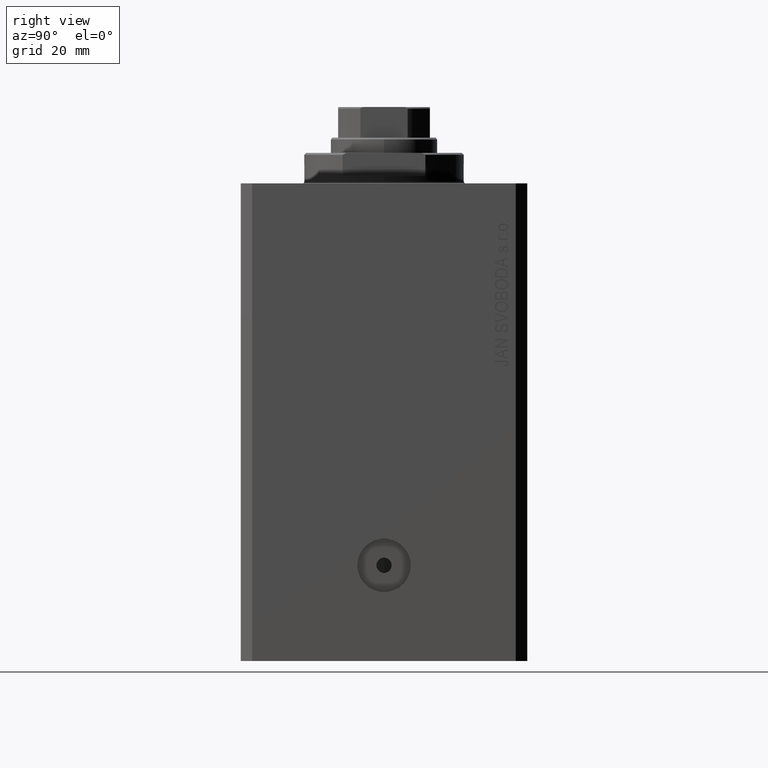
[diagram: clean part render]
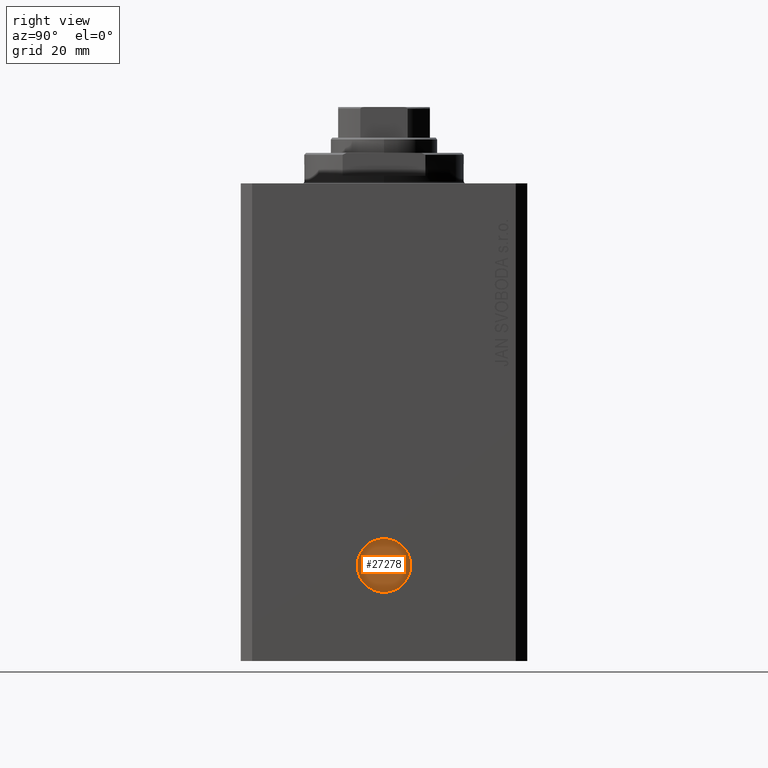
[diagram: same view with one face highlighted and labeled with its STEP entity id]
A machine part, right view. The second image highlights one B-rep face of the part: STEP entity #27278.
In plain terms, the highlighted planar face has unit normal (1, -0, 0).
Its self-contained STEP definition (entity closure, byte-faithful):
#1121 = CIRCLE ( 'NONE', #19853, 7.000000000000000000 ) ;
#1997 = FACE_BOUND ( 'NONE', #16791, .T. ) ;
#4050 = CIRCLE ( 'NONE', #29264, 1.999999999999996225 ) ;
#5688 = DIRECTION ( 'NONE',  ( 1.000000000000000000, -1.334402673828349134E-14, 0.000000000000000000 ) ) ;
#6133 = CARTESIAN_POINT ( 'NONE',  ( 45.50000000000026290, 1.042961394196529127E-13, -100.0000000000000000 ) ) ;
#9389 = VERTEX_POINT ( 'NONE', #23126 ) ;
#10926 = DIRECTION ( 'NONE',  ( 1.000000000000000000, -1.334402673828349134E-14, 0.000000000000000000 ) ) ;
#11507 = DIRECTION ( 'NONE',  ( 1.000000000000000000, -1.334402673828349134E-14, 0.000000000000000000 ) ) ;
#11806 = CARTESIAN_POINT ( 'NONE',  ( 45.50000000000026290, 1.042961394196529253E-13, -100.0000000000000000 ) ) ;
#11905 = DIRECTION ( 'NONE',  ( 1.000000000000000000, -1.334402673828349134E-14, 0.000000000000000000 ) ) ;
#11962 = DIRECTION ( 'NONE',  ( 1.288651725011342390E-14, 1.000000000000000000, 0.000000000000000000 ) ) ;
#13625 = VERTEX_POINT ( 'NONE', #17210 ) ;
#13694 = AXIS2_PLACEMENT_3D ( 'NONE', #11806, #10926, #14747 ) ;
#14747 = DIRECTION ( 'NONE',  ( 1.387778780781448358E-14, 1.000000000000000000, 0.000000000000000000 ) ) ;
#16791 = EDGE_LOOP ( 'NONE', ( #44238, #17773 ) ) ;
#17132 = VERTEX_POINT ( 'NONE', #18417 ) ;
#17210 = CARTESIAN_POINT ( 'NONE',  ( 45.50000000000017053, -6.999999999999896083, -100.0000000000000000 ) ) ;
#17773 = ORIENTED_EDGE ( 'NONE', *, *, #32261, .F. ) ;
#18022 = CARTESIAN_POINT ( 'NONE',  ( 45.50000000000026290, 1.042961394196529253E-13, -100.0000000000000000 ) ) ;
#18417 = CARTESIAN_POINT ( 'NONE',  ( 45.50000000000029132, 2.000000000000100364, -100.0000000000000000 ) ) ;
#18910 = DIRECTION ( 'NONE',  ( 1.334402673828349134E-14, 1.000000000000000000, 0.000000000000000000 ) ) ;
#19853 = AXIS2_PLACEMENT_3D ( 'NONE', #6133, #5688, #40858 ) ;
#20663 = VERTEX_POINT ( 'NONE', #30973 ) ;
#22511 = CARTESIAN_POINT ( 'NONE',  ( 45.50000000000026290, 1.042961394196529127E-13, -100.0000000000000000 ) ) ;
#23126 = CARTESIAN_POINT ( 'NONE',  ( 45.50000000000023448, -1.999999999999892086, -100.0000000000000000 ) ) ;
#25893 = DIRECTION ( 'NONE',  ( 1.000000000000000000, -1.334402673828349134E-14, 0.000000000000000000 ) ) ;
#26303 = EDGE_CURVE ( 'NONE', #13625, #20663, #1121, .T. ) ;
#27278 = ADVANCED_FACE ( 'NONE', ( #1997, #28814 ), #36033, .T. ) ;
#28814 = FACE_OUTER_BOUND ( 'NONE', #33172, .T. ) ;
#29264 = AXIS2_PLACEMENT_3D ( 'NONE', #18022, #25893, #36506 ) ;
#29804 = ORIENTED_EDGE ( 'NONE', *, *, #34665, .T. ) ;
#30973 = CARTESIAN_POINT ( 'NONE',  ( 45.50000000000035527, 7.000000000000103917, -100.0000000000000000 ) ) ;
#32261 = EDGE_CURVE ( 'NONE', #9389, #17132, #4050, .T. ) ;
#33134 = CIRCLE ( 'NONE', #13694, 1.999999999999996225 ) ;
#33138 = AXIS2_PLACEMENT_3D ( 'NONE', #42399, #11507, #11962 ) ;
#33172 = EDGE_LOOP ( 'NONE', ( #29804, #44065 ) ) ;
#34665 = EDGE_CURVE ( 'NONE', #20663, #13625, #41061, .T. ) ;
#34888 = AXIS2_PLACEMENT_3D ( 'NONE', #22511, #11905, #18910 ) ;
#36033 = PLANE ( 'NONE',  #34888 ) ;
#36506 = DIRECTION ( 'NONE',  ( 1.387778780781448358E-14, 1.000000000000000000, 0.000000000000000000 ) ) ;
#38478 = EDGE_CURVE ( 'NONE', #17132, #9389, #33134, .T. ) ;
#40858 = DIRECTION ( 'NONE',  ( 1.288651725011342390E-14, 1.000000000000000000, 0.000000000000000000 ) ) ;
#41061 = CIRCLE ( 'NONE', #33138, 7.000000000000000000 ) ;
#42399 = CARTESIAN_POINT ( 'NONE',  ( 45.50000000000026290, 1.042961394196529127E-13, -100.0000000000000000 ) ) ;
#44065 = ORIENTED_EDGE ( 'NONE', *, *, #26303, .T. ) ;
#44238 = ORIENTED_EDGE ( 'NONE', *, *, #38478, .F. ) ;